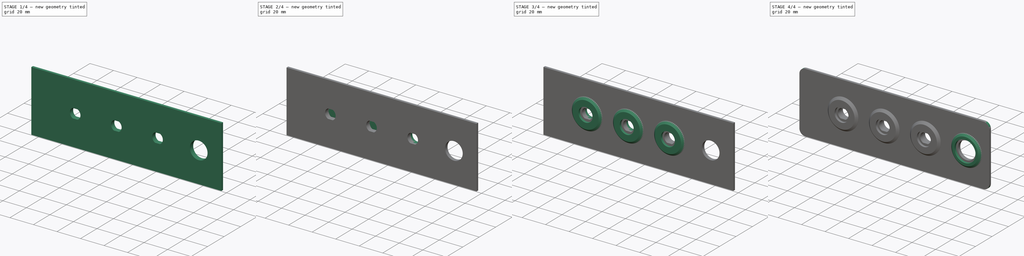
[diagram: build sequence overview — one tinted view per stage of 4, left to right]
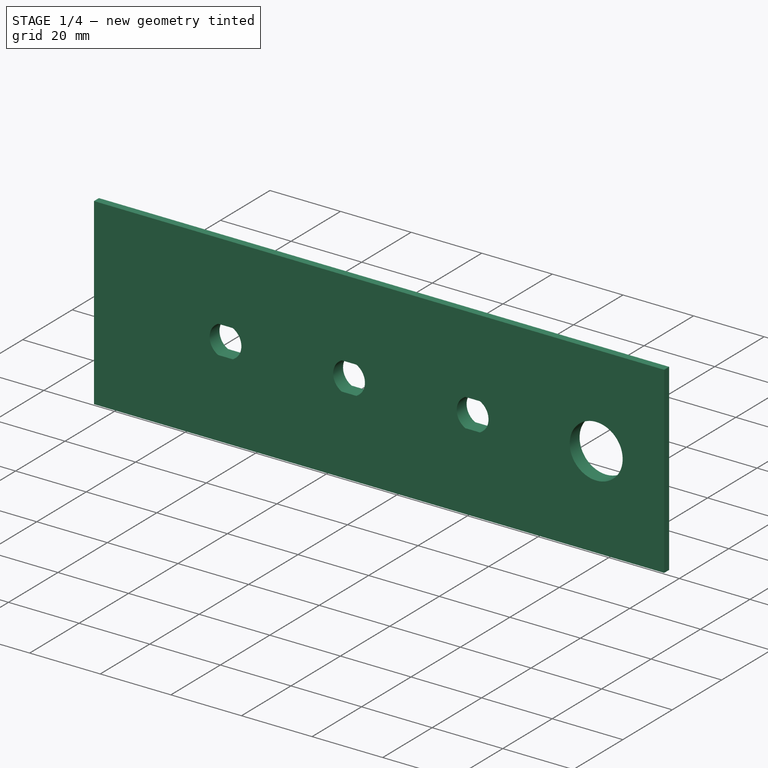
[diagram: stage 1 of 4 — iso view after this stage's code; geometry added in this stage tinted green]
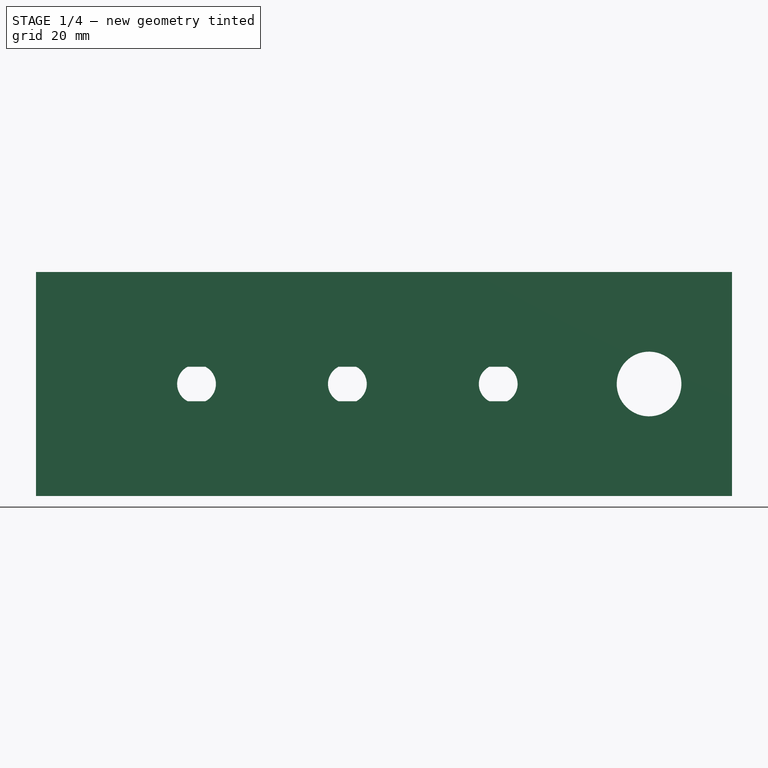
[diagram: stage 1 of 4 — front view after this stage's code; geometry added in this stage tinted green]
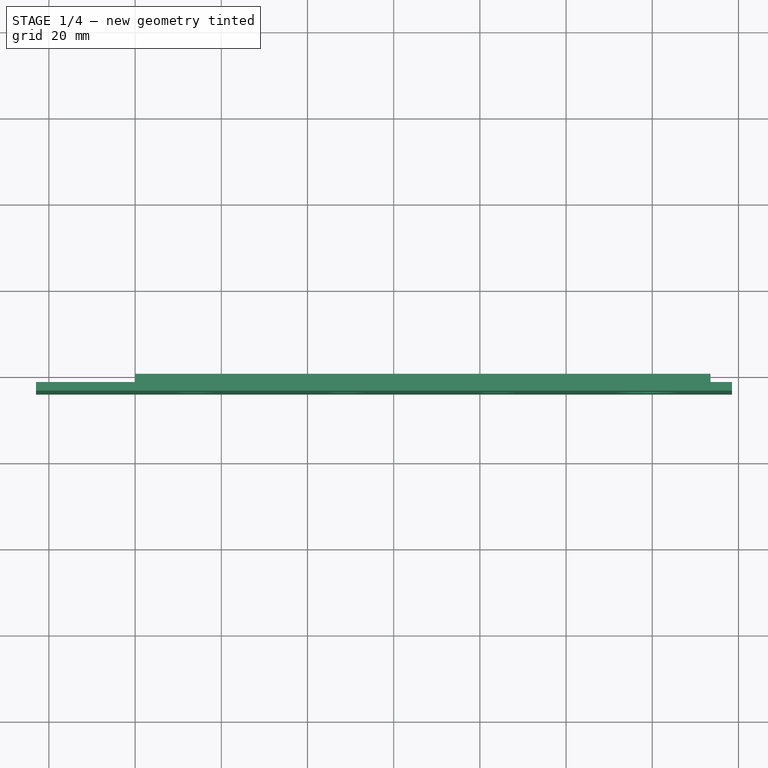
[diagram: stage 1 of 4 — top view after this stage's code; geometry added in this stage tinted green]
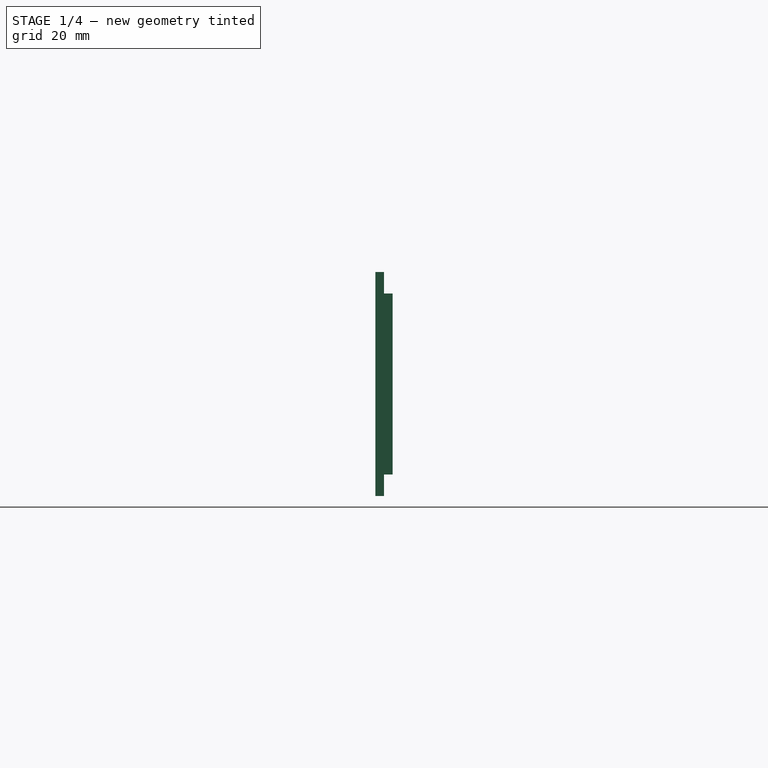
[diagram: stage 1 of 4 — right view after this stage's code; geometry added in this stage tinted green]
FCSTD DOCUMENT  (FreeCAD 0.17R13519 (Git))
Label: panel
License: All rights reserved
LicenseURL: http://en.wikipedia.org/wiki/All_rights_reserved
objects: Sketcher::SketchObject×8, PartDesign::Pad×5, PartDesign::Pocket×3, PartDesign::LinearPattern×2, PartDesign::Chamfer×2, PartDesign::Fillet×1, PartDesign::Body×1
note: 30 computed .brp shape members not serialized (recipe doc carries the construction recipe); baked Part::Feature solids carry a one-line shape summary decoded from their .brp

FEATURE [Sketcher::SketchObject] Sketch
  MapMode = 5
  Placement = pos=(0,0,0) rot=(1,0,0;1.5708rad)
  Support = -> [XZ_Plane]
  sketch-geometry (4):
    g0: LineSegment StartX=0 StartY=0 StartZ=0 EndX=133.5 EndY=0 EndZ=0
    g1: LineSegment StartX=133.5 StartY=0 StartZ=0 EndX=133.5 EndY=42 EndZ=0
    g2: LineSegment StartX=133.5 StartY=42 StartZ=0 EndX=0 EndY=42 EndZ=0
    g3: LineSegment StartX=0 StartY=42 StartZ=0 EndX=0 EndY=0 EndZ=0
  constraints (11):
    c: Coincident(g0,g1)
    c: Coincident(g1,g2)
    c: Coincident(g2,g3)
    c: Coincident(g3,g0)
    c: Horizontal(g0)
    c: Horizontal(g2)
    c: Vertical(g1)
    c: Vertical(g3)
    c: DistanceX(g0,g0) = 133.5
    c: DistanceY(g3,g3) = 42
    c: Coincident(g0,g-1)
FEATURE [PartDesign::Pad] Pad
  Length = 2
  Length2 = 100
  Placement = pos=(0,0,0) rot=(1,0,0;1.5708rad)
  Profile = -> Sketch
  Type = 0
FEATURE [Sketcher::SketchObject] Sketch001
  ExternalGeometry = -> [Pad]
  MapMode = 5
  Placement = pos=(0,-2,0) rot=(1,0,0;1.5708rad)
  Support = -> [Pad]
  sketch-geometry (4):
    g0: LineSegment StartX=138.5 StartY=-5 StartZ=0 EndX=-23 EndY=-5 EndZ=0
    g1: LineSegment StartX=-23 StartY=-5 StartZ=0 EndX=-23 EndY=47 EndZ=0
    g2: LineSegment StartX=-23 StartY=47 StartZ=0 EndX=138.5 EndY=47 EndZ=0
    g3: LineSegment StartX=138.5 StartY=47 StartZ=0 EndX=138.5 EndY=-5 EndZ=0
  constraints (12):
    c: Coincident(g0,g1)
    c: Coincident(g1,g2)
    c: Coincident(g2,g3)
    c: Coincident(g3,g0)
    c: Horizontal(g0)
    c: Horizontal(g2)
    c: Vertical(g1)
    c: Vertical(g3)
    c: DistanceX(g-4,g0) = 5
    c: DistanceY(g0,g-4) = 5
    c: DistanceY(g-3,g2) = 5
    c: DistanceX(g0,g-1) = 23
FEATURE [PartDesign::Pad] Pad001
  BaseFeature = -> Pad
  Length = 2
  Length2 = 100
  Placement = pos=(0,0,0) rot=(1,0,0;1.5708rad)
  Profile = -> Sketch001
  Type = 0
FEATURE [Sketcher::SketchObject] Sketch002
  ExternalGeometry = -> [Pad001]
  MapMode = 5
  Placement = pos=(0,-4,0) rot=(1,0,0;1.5708rad)
  Support = -> [Pad001]
  sketch-geometry (22):
    g0: Circle [constr] CenterX=119.25 CenterY=21 CenterZ=0 NormalX=0 NormalY=0 NormalZ=1 AngleXU=0 Radius=10
    g1: Circle [constr] CenterX=84.25 CenterY=21 CenterZ=0 NormalX=0 NormalY=0 NormalZ=1 AngleXU=0 Radius=10
    g2: Circle [constr] CenterX=14.25 CenterY=21 CenterZ=0 NormalX=0 NormalY=0 NormalZ=1 AngleXU=0 Radius=10
    g3: Circle [constr] CenterX=49.25 CenterY=21 CenterZ=0 NormalX=0 NormalY=0 NormalZ=1 AngleXU=0 Radius=10
    g4: LineSegment [constr] StartX=0 StartY=21 StartZ=0 EndX=14.25 EndY=21 EndZ=0
    g5: LineSegment [constr] StartX=14.25 StartY=21 StartZ=0 EndX=49.25 EndY=21 EndZ=0
    g6: LineSegment [constr] StartX=49.25 StartY=21 StartZ=0 EndX=84.25 EndY=21 EndZ=0
    g7: LineSegment [constr] StartX=84.25 StartY=21 StartZ=0 EndX=119.25 EndY=21 EndZ=0
    g8: LineSegment [constr] StartX=119.25 StartY=21 StartZ=0 EndX=133.5 EndY=21 EndZ=0
    g9: ArcOfCircle CenterX=14.25 CenterY=21 CenterZ=0 NormalX=0 NormalY=0 NormalZ=1 AngleXU=0 Radius=4.5 StartAngle=2.04668 EndAngle=4.23651
    g10: ArcOfCircle CenterX=49.25 CenterY=21 CenterZ=0 NormalX=0 NormalY=0 NormalZ=1 AngleXU=0 Radius=4.5 StartAngle=2.04668 EndAngle=4.23651
    g11: LineSegment StartX=12.1884 StartY=25 StartZ=0 EndX=16.3116 EndY=25 EndZ=0
    g12: LineSegment StartX=12.1884 StartY=17 StartZ=0 EndX=16.3116 EndY=17 EndZ=0
    g13: ArcOfCircle CenterX=14.25 CenterY=21 CenterZ=0 NormalX=0 NormalY=0 NormalZ=1 AngleXU=0 Radius=4.5 StartAngle=5.18827 EndAngle=7.3781
    g14: LineSegment StartX=51.3116 StartY=25 StartZ=0 EndX=47.1884 EndY=25 EndZ=0
    g15: LineSegment StartX=47.1884 StartY=17 StartZ=0 EndX=51.3116 EndY=17 EndZ=0
    g16: ArcOfCircle CenterX=49.25 CenterY=21 CenterZ=0 NormalX=0 NormalY=0 NormalZ=1 AngleXU=0 Radius=4.5 StartAngle=5.18827 EndAngle=7.3781
    g17: LineSegment StartX=82.1884 StartY=17 StartZ=0 EndX=86.3116 EndY=17 EndZ=0
    g18: ArcOfCircle CenterX=84.25 CenterY=21 CenterZ=0 NormalX=0 NormalY=0 NormalZ=1 AngleXU=0 Radius=4.5 StartAngle=2.04668 EndAngle=4.23651
    g19: LineSegment StartX=86.3116 StartY=25 StartZ=0 EndX=82.1884 EndY=25 EndZ=0
    g20: ArcOfCircle CenterX=84.25 CenterY=21 CenterZ=0 NormalX=0 NormalY=0 NormalZ=1 AngleXU=0 Radius=4.5 StartAngle=5.18827 EndAngle=7.3781
    g21: Circle CenterX=119.25 CenterY=21 CenterZ=0 NormalX=0 NormalY=0 NormalZ=1 AngleXU=0 Radius=7.5
  constraints (61):
    c: Equal(g2,g1)
    c: Equal(g1,g0)
    c: Horizontal(g4)
    c: Coincident(g4,g5)
    c: Horizontal(g5)
    c: Coincident(g5,g6)
    c: Horizontal(g6)
    c: Coincident(g6,g7)
    c: Coincident(g7,g8)
    c: Horizontal(g8)
    c: Horizontal(g7)
    c: Equal(g7,g6)
    c: Equal(g6,g5)
    c: Equal(g8,g4)
    c: PointOnObject(g4,g-4)
    c: Symmetric(g-3,g-3,g8)
    c: Coincident(g0,g7)
    c: Coincident(g1,g6)
    c: Coincident(g2,g4)
    c: Equal(g3,g0)
    c: Coincident(g5,g3)
    c: Radius(g2) = 10
    c: DistanceX(g2,g3) = 35
    c: Coincident(g9,g2)
    c: Horizontal(g11)
    c: Horizontal(g12)
    c: Coincident(g9,g11)
    c: Coincident(g13,g11)
    c: Equal(g9,g13)
    c: Coincident(g9,g12)
    c: Coincident(g13,g12)
    c: Coincident(g9,g13)
    c: Equal(g12,g11)
    c: DistanceY(g9,g9) = 8
    c: Radius(g9) = 4.5
    c: Horizontal(g15)
    c: Horizontal(g14)
    c: Equal(g15,g14)
    c: Coincident(g3,g10)
    c: Coincident(g10,g14)
    c: Coincident(g16,g14)
    c: Equal(g10,g16)
    c: Coincident(g10,g15)
    c: Coincident(g16,g15)
    c: Coincident(g10,g16)
    c: Equal(g15,g12)
    c: Equal(g10,g13)
    c: Horizontal(g17)
    c: Horizontal(g19)
    c: Equal(g17,g19)
    c: Coincident(g18,g19)
    c: Coincident(g20,g19)
    c: Equal(g18,g20)
    c: Coincident(g18,g17)
    c: Coincident(g20,g17)
    c: Coincident(g18,g20)
    c: Coincident(g18,g1)
    c: Equal(g17,g15)
    c: Equal(g16,g20)
    c: Coincident(g21,g0)
    c: Radius(g21) = 7.5
FEATURE [PartDesign::Pocket] Pocket
  BaseFeature = -> Pad001
  Length = 5
  Length2 = 100
  Placement = pos=(0,0,0) rot=(1,0,0;1.5708rad)
  Profile = -> Sketch002
  Type = 1
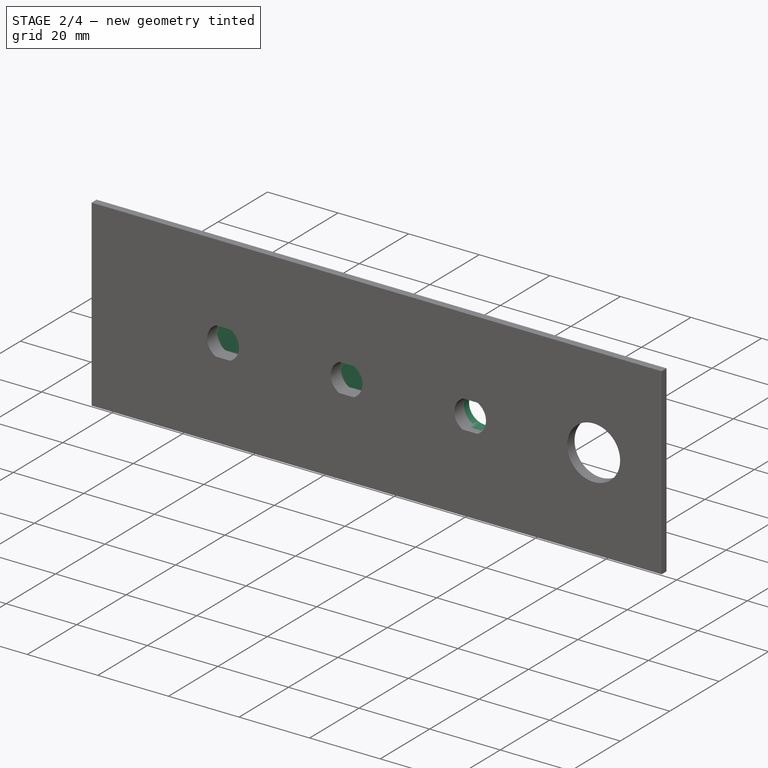
[diagram: stage 2 of 4 — iso view after this stage's code; geometry added in this stage tinted green]
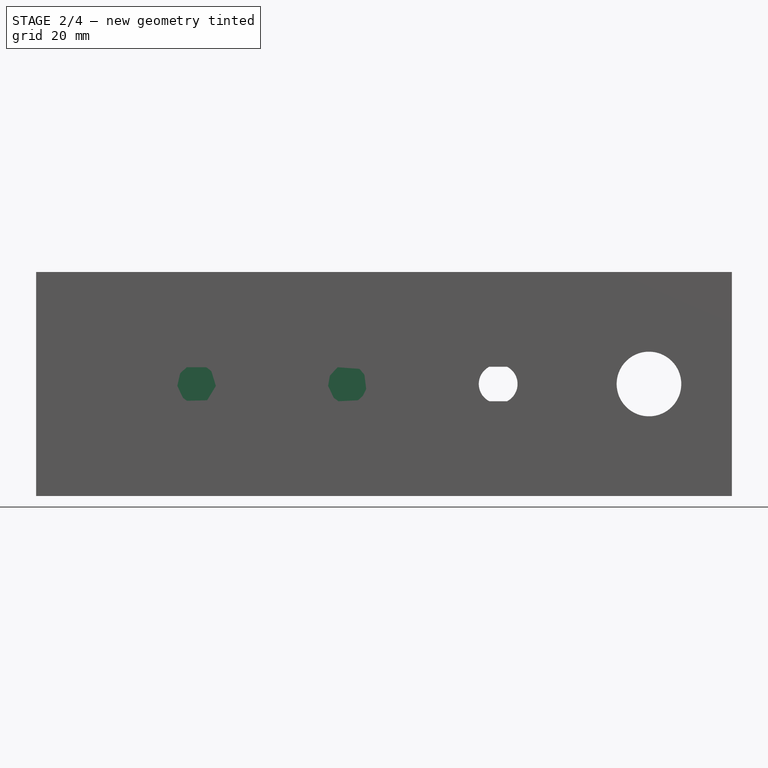
[diagram: stage 2 of 4 — front view after this stage's code; geometry added in this stage tinted green]
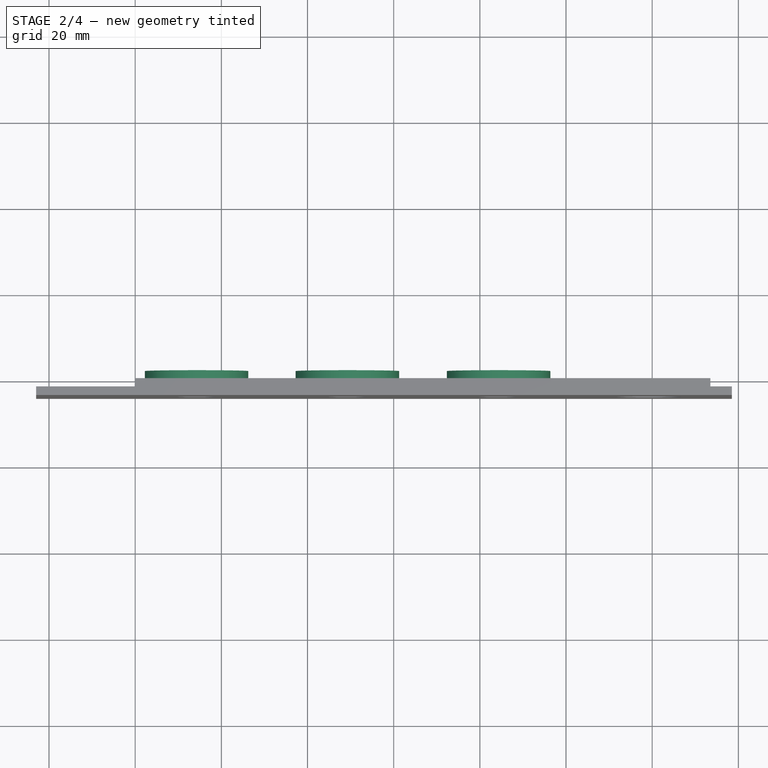
[diagram: stage 2 of 4 — top view after this stage's code; geometry added in this stage tinted green]
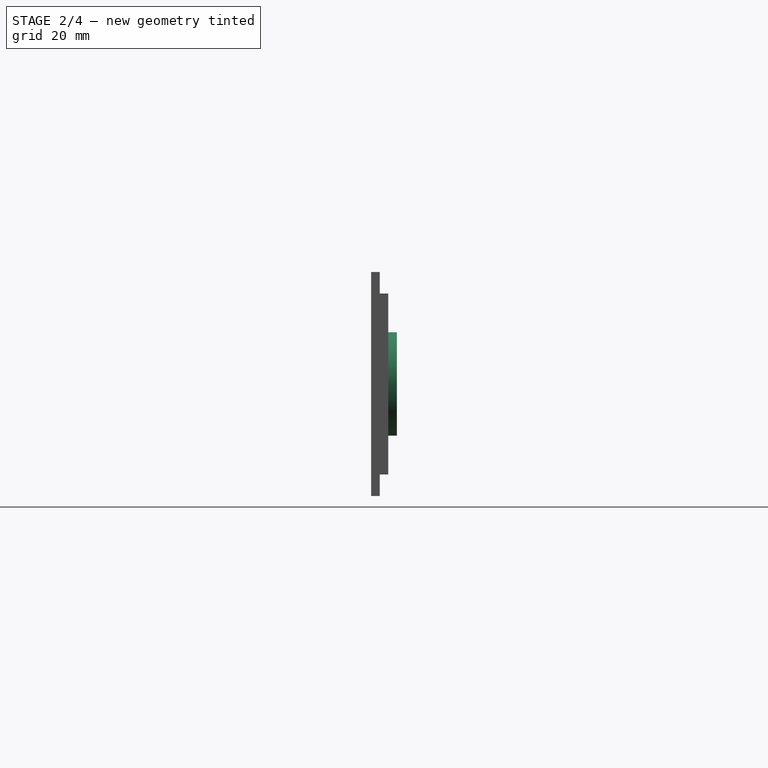
[diagram: stage 2 of 4 — right view after this stage's code; geometry added in this stage tinted green]
FEATURE [Sketcher::SketchObject] Sketch003
  ExternalGeometry = -> [Pocket]
  MapMode = 5
  Placement = pos=(0,0,0) rot=(-1,0,0;1.5708rad)
  Support = -> [Pocket]
  sketch-geometry (1):
    g0: Circle CenterX=119.25 CenterY=-21 CenterZ=0 NormalX=0 NormalY=0 NormalZ=1 AngleXU=0 Radius=12
  constraints (2):
    c: Coincident(g0,g-3)
    c: Radius(g0) = 12
FEATURE [PartDesign::Pocket] Pocket001
  BaseFeature = -> Pocket
  Length = 1
  Length2 = 100
  Placement = pos=(0,0,0) rot=(1,0,0;1.5708rad)
  Profile = -> Sketch003
  Type = 0
FEATURE [Sketcher::SketchObject] Sketch004
  ExternalGeometry = -> [Pocket001]
  MapMode = 5
  Placement = pos=(0,0,0) rot=(-1,0,0;1.5708rad)
  Support = -> [Pocket001]
  sketch-geometry (3):
    g0: Circle CenterX=84.3556 CenterY=-21.0023 CenterZ=0 NormalX=0 NormalY=0 NormalZ=1 AngleXU=0 Radius=12
    g1: Circle CenterX=49.25 CenterY=-21 CenterZ=0 NormalX=0 NormalY=0 NormalZ=1 AngleXU=0 Radius=12
    g2: Circle CenterX=14.25 CenterY=-21 CenterZ=0 NormalX=0 NormalY=0 NormalZ=1 AngleXU=0 Radius=12
  constraints (4):
    c: Coincident(g1,g-4)
    c: Equal(g2,g1)
    c: Equal(g1,g0)
    c: Radius(g2) = 12
FEATURE [PartDesign::Pad] Pad002
  BaseFeature = -> Pocket001
  Length = 2
  Length2 = 100
  Placement = pos=(0,0,0) rot=(1,0,0;1.5708rad)
  Profile = -> Sketch004
  Type = 0
FEATURE [Sketcher::SketchObject] Sketch005
  ExternalGeometry = -> [Pad002]
  MapMode = 5
  Placement = pos=(0,2,0) rot=(-1,0,0;1.5708rad)
  Support = -> [Pad002]
  sketch-geometry (3):
    g0: Circle CenterX=14.25 CenterY=-21 CenterZ=0 NormalX=0 NormalY=0 NormalZ=1 AngleXU=0 Radius=4.5
    g1: Circle CenterX=49.25 CenterY=-21 CenterZ=0 NormalX=0 NormalY=0 NormalZ=1 AngleXU=0 Radius=4.5
    g2: Circle CenterX=84.25 CenterY=-21 CenterZ=0 NormalX=0 NormalY=0 NormalZ=1 AngleXU=0 Radius=4.5
  constraints (6):
    c: Coincident(g0,g-3)
    c: Equal(g0,g-3)
    c: Coincident(g2,g-5)
    c: Coincident(g1,g-4)
    c: Equal(g2,g1)
    c: Equal(g1,g0)
FEATURE [PartDesign::Pocket] Pocket002
  BaseFeature = -> Pad002
  Length = 0
  Length2 = 100
  Placement = pos=(0,0,0) rot=(1,0,0;1.5708rad)
  Profile = -> Sketch005
  Type = 3
  UpToFace = -> Pad002 [Face4]
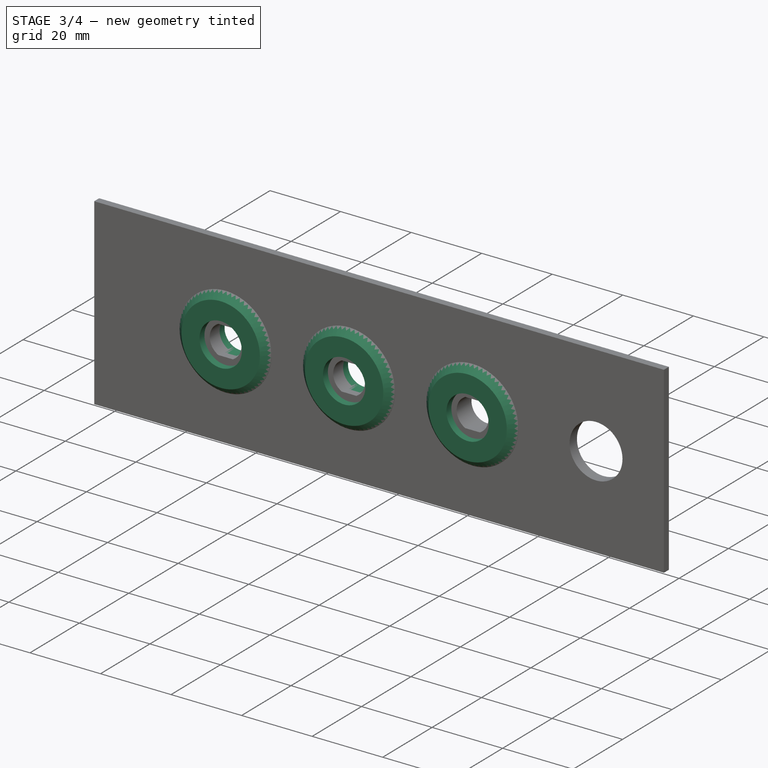
[diagram: stage 3 of 4 — iso view after this stage's code; geometry added in this stage tinted green]
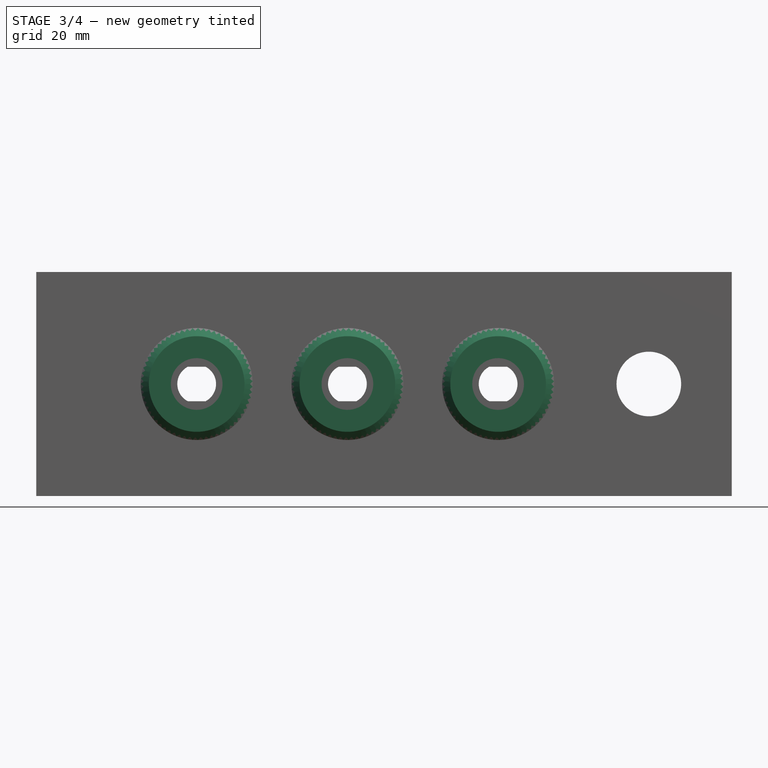
[diagram: stage 3 of 4 — front view after this stage's code; geometry added in this stage tinted green]
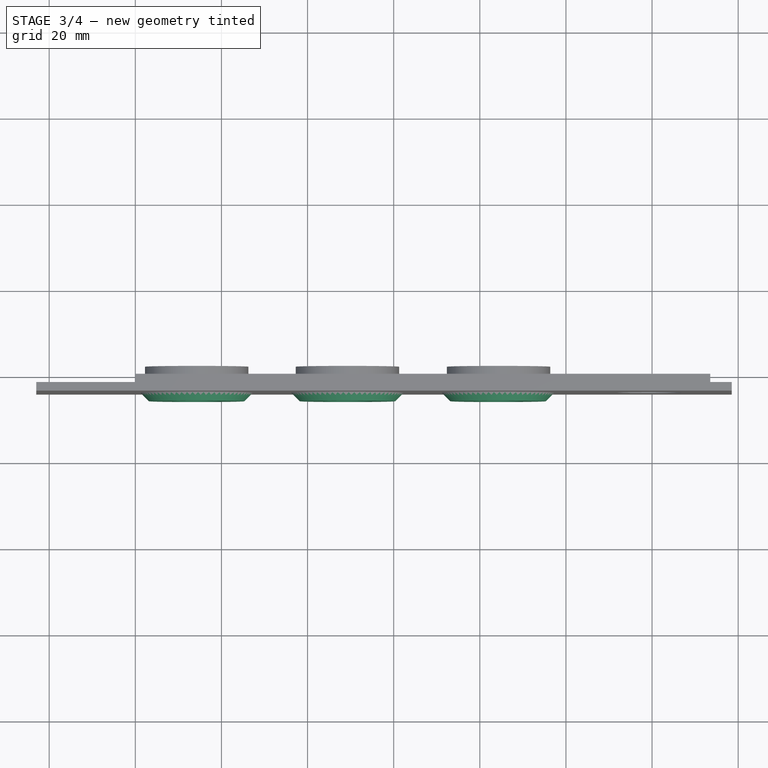
[diagram: stage 3 of 4 — top view after this stage's code; geometry added in this stage tinted green]
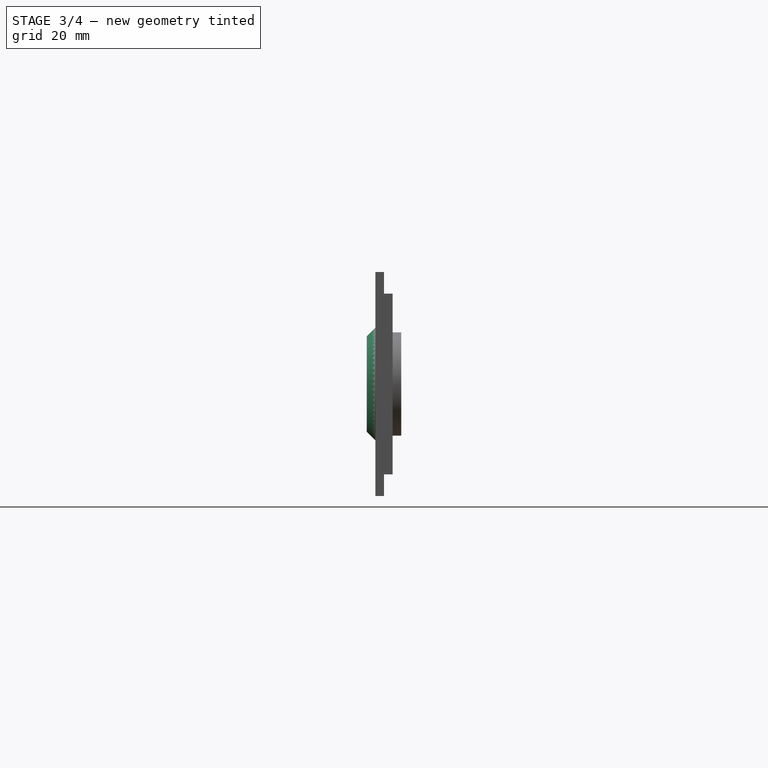
[diagram: stage 3 of 4 — right view after this stage's code; geometry added in this stage tinted green]
FEATURE [PartDesign::LinearPattern] LinearPattern
  BaseFeature = -> Pocket002
  Direction = -> X_Axis
  Length = 70
  Occurrences = 3
  Originals = -> [Pocket002]
  Placement = pos=(0,0,0) rot=(1,0,0;1.5708rad)
  Reversed = true
FEATURE [Sketcher::SketchObject] Sketch006
  ExternalGeometry = -> [LinearPattern]
  MapMode = 5
  Placement = pos=(0,-4,0) rot=(1,0,0;1.5708rad)
  Support = -> [LinearPattern]
  sketch-geometry (2):
    g0: Circle CenterX=84.25 CenterY=21 CenterZ=0 NormalX=0 NormalY=0 NormalZ=1 AngleXU=0 Radius=13
    g1: Circle CenterX=84.25 CenterY=21 CenterZ=0 NormalX=0 NormalY=0 NormalZ=1 AngleXU=0 Radius=6
  constraints (4):
    c: Coincident(g0,g-3)
    c: Radius(g0) = 13
    c: Coincident(g1,g0)
    c: Radius(g1) = 6
FEATURE [PartDesign::Pad] Pad003
  BaseFeature = -> LinearPattern
  Length = 2
  Length2 = 100
  Placement = pos=(0,0,0) rot=(1,0,0;1.5708rad)
  Profile = -> Sketch006
  Type = 0
FEATURE [PartDesign::LinearPattern] LinearPattern001
  BaseFeature = -> Pad003
  Direction = -> Sketch006 [H_Axis]
  Length = 70
  Occurrences = 3
  Originals = -> [Pad003]
  Placement = pos=(0,0,0) rot=(1,0,0;1.5708rad)
  Reversed = true
FEATURE [PartDesign::Chamfer] Chamfer
  Base = -> LinearPattern001 [Edge79,Edge81,Edge77]
  BaseFeature = -> LinearPattern001
  Placement = pos=(0,0,0) rot=(1,0,0;1.5708rad)
  Size = 1.9
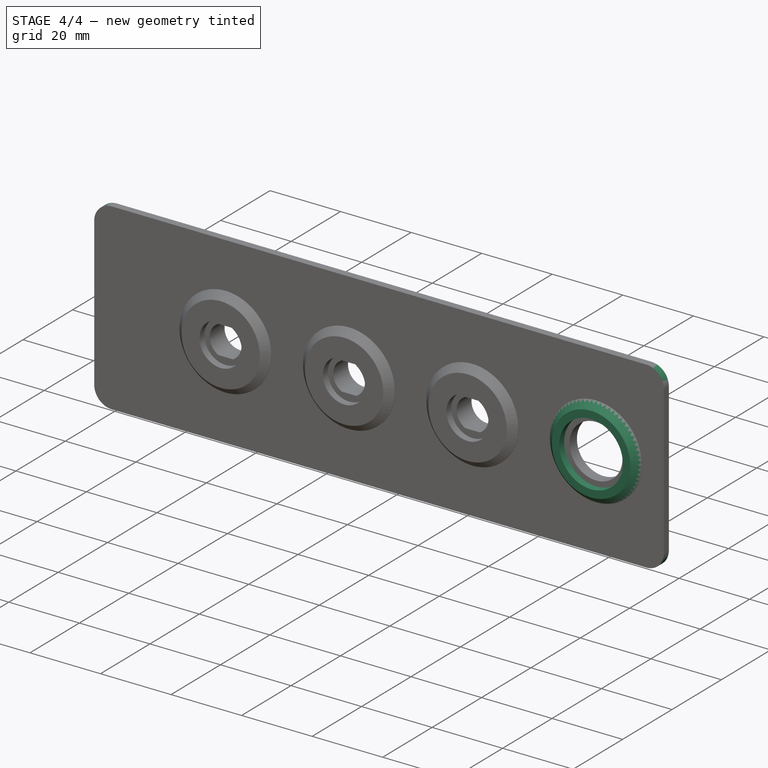
[diagram: stage 4 of 4 — iso view after this stage's code; geometry added in this stage tinted green]
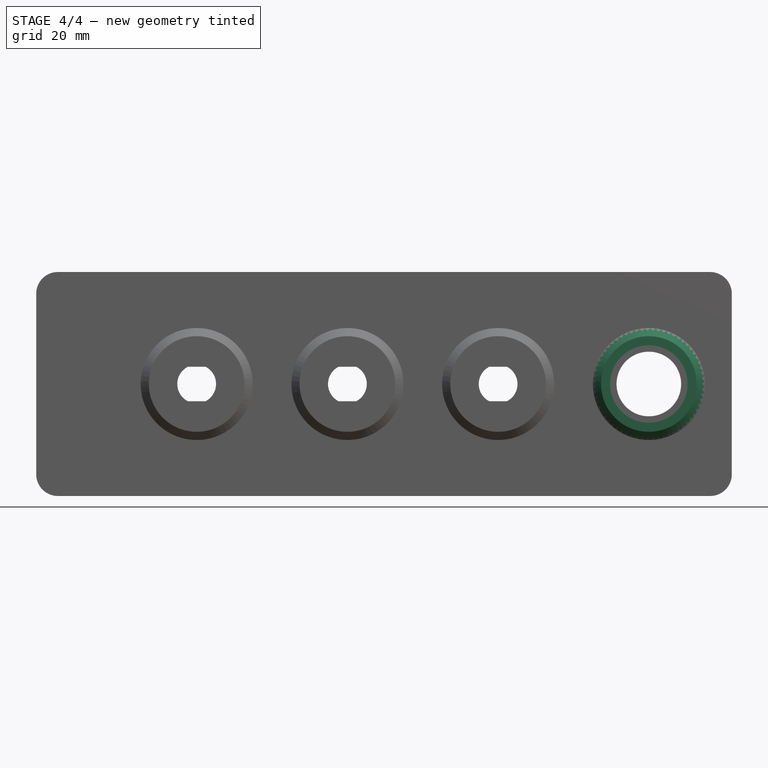
[diagram: stage 4 of 4 — front view after this stage's code; geometry added in this stage tinted green]
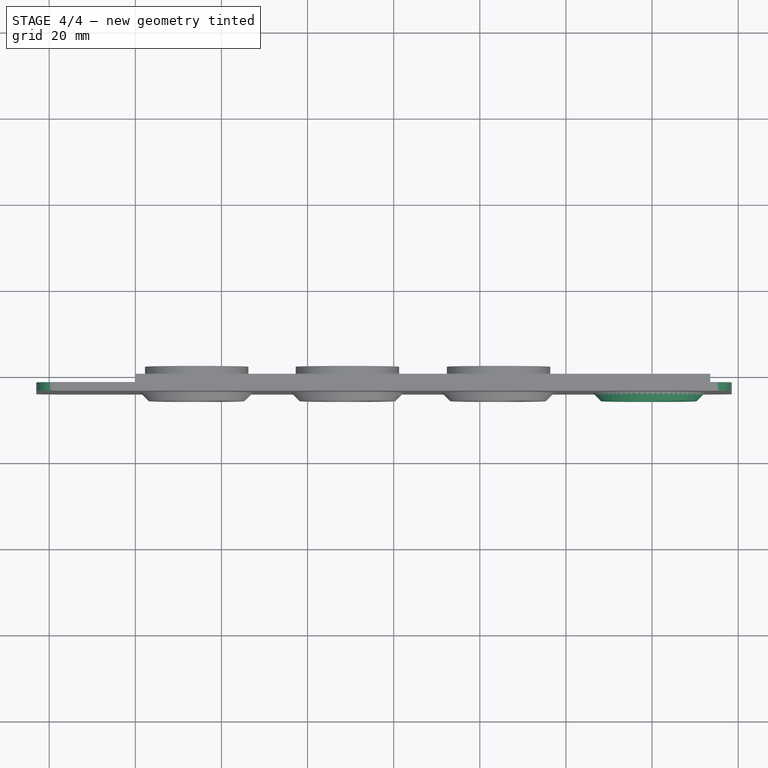
[diagram: stage 4 of 4 — top view after this stage's code; geometry added in this stage tinted green]
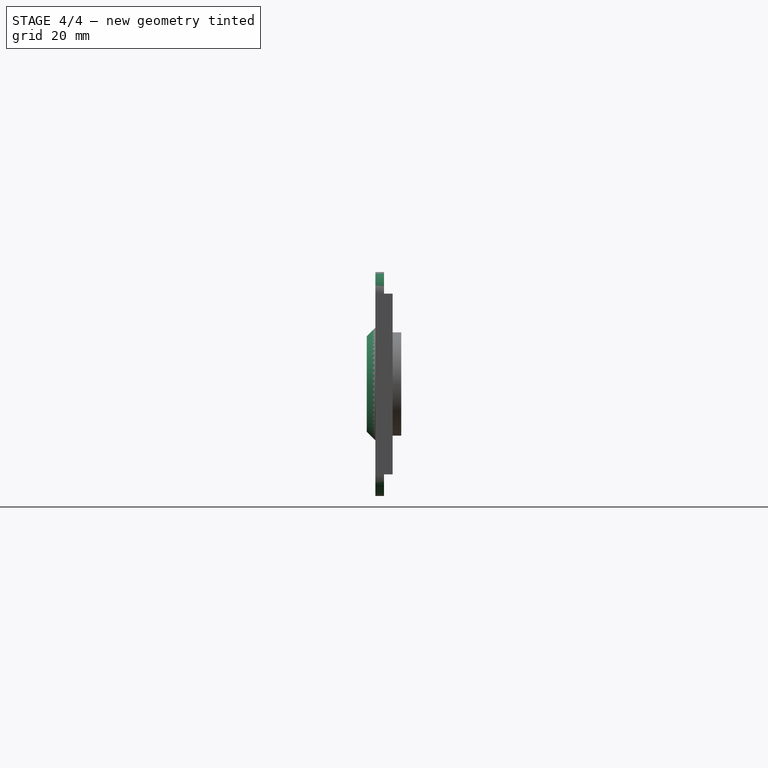
[diagram: stage 4 of 4 — right view after this stage's code; geometry added in this stage tinted green]
FEATURE [PartDesign::Fillet] Fillet
  Base = -> Chamfer [Edge15,Edge19,Edge14,Edge17]
  BaseFeature = -> Chamfer
  Placement = pos=(0,0,0) rot=(1,0,0;1.5708rad)
  Radius = 5
FEATURE [Sketcher::SketchObject] Sketch007
  ExternalGeometry = -> [Fillet]
  MapMode = 5
  Placement = pos=(0,-4,0) rot=(1,0,0;1.5708rad)
  Support = -> [Fillet]
  sketch-geometry (3):
    g0: Circle CenterX=119.25 CenterY=21 CenterZ=0 NormalX=0 NormalY=0 NormalZ=1 AngleXU=0 Radius=13
    g1: Circle CenterX=119.25 CenterY=21 CenterZ=0 NormalX=0 NormalY=0 NormalZ=1 AngleXU=0 Radius=9
    g2: LineSegment [constr] StartX=119.25 StartY=21 StartZ=0 EndX=84.25 EndY=21 EndZ=0
  constraints (6):
    c: Coincident(g0,g-3)
    c: Equal(g0,g-4)
    c: Coincident(g1,g0)
    c: Coincident(g2,g0)
    c: Coincident(g2,g-4)
    c: Radius(g1) = 9
FEATURE [PartDesign::Pad] Pad004
  BaseFeature = -> Fillet
  Length = 2
  Length2 = 100
  Placement = pos=(0,0,0) rot=(1,0,0;1.5708rad)
  Profile = -> Sketch007
  Type = 0
FEATURE [PartDesign::Chamfer] Chamfer001
  Base = -> Pad004 [Edge46]
  BaseFeature = -> Pad004
  Placement = pos=(0,0,0) rot=(1,0,0;1.5708rad)
  Size = 1.9
FEATURE [PartDesign::Body] Body
  Group = -> [Sketch,Pad,Sketch001,Pad001,Sketch002,Pocket,Sketch003,Pocket001,Sketch004,Pad002,Sketch005,Pocket002,LinearPattern,Sketch006,Pad003,LinearPattern001,Chamfer,Fillet,Sketch007,Pad004,Chamfer001]
  Origin = -> Origin
  Tip = -> Chamfer001
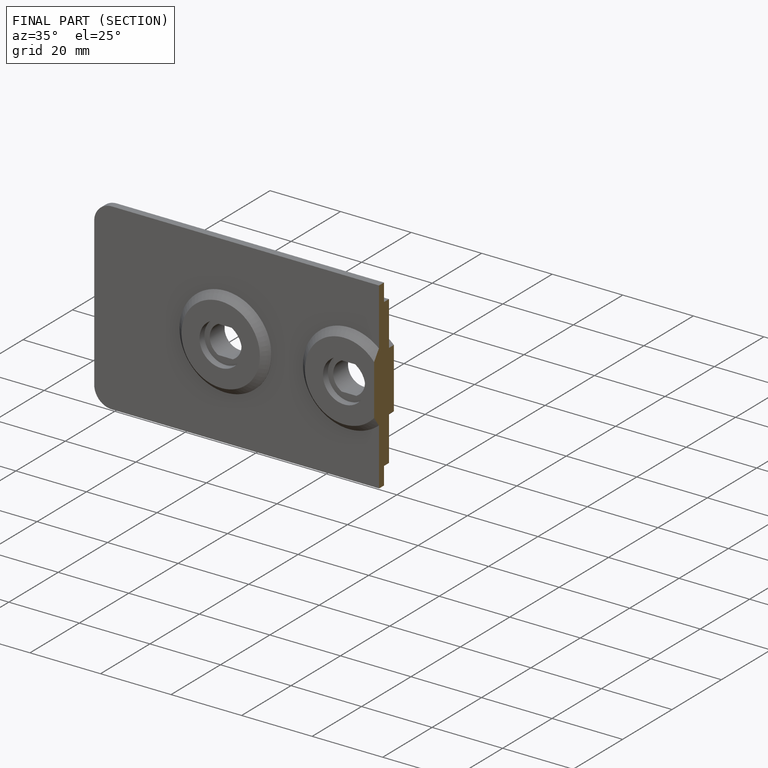
[diagram: finished part — half-section view (interior)]
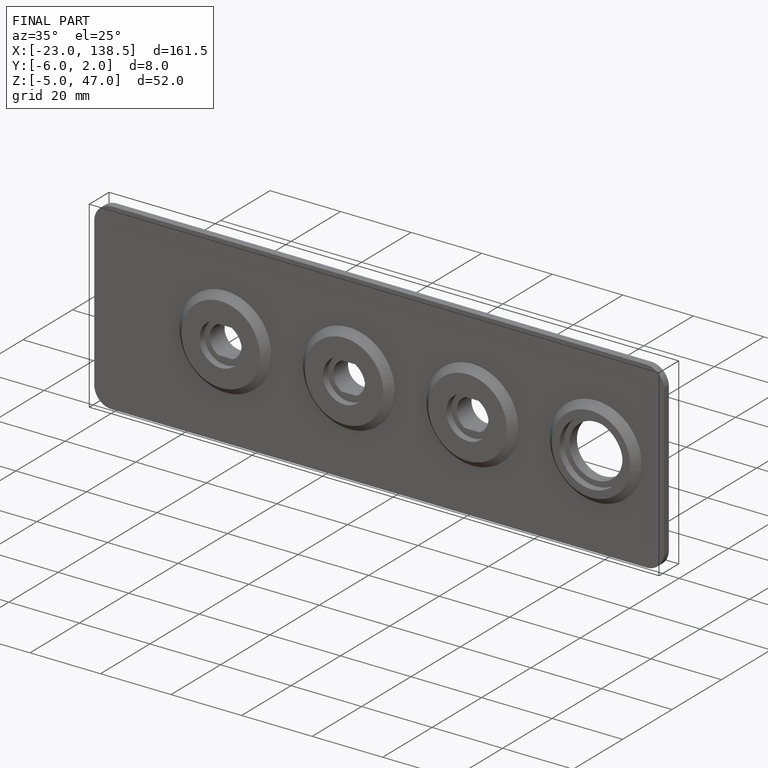
[diagram: finished part — iso view with bounding-box wireframe]
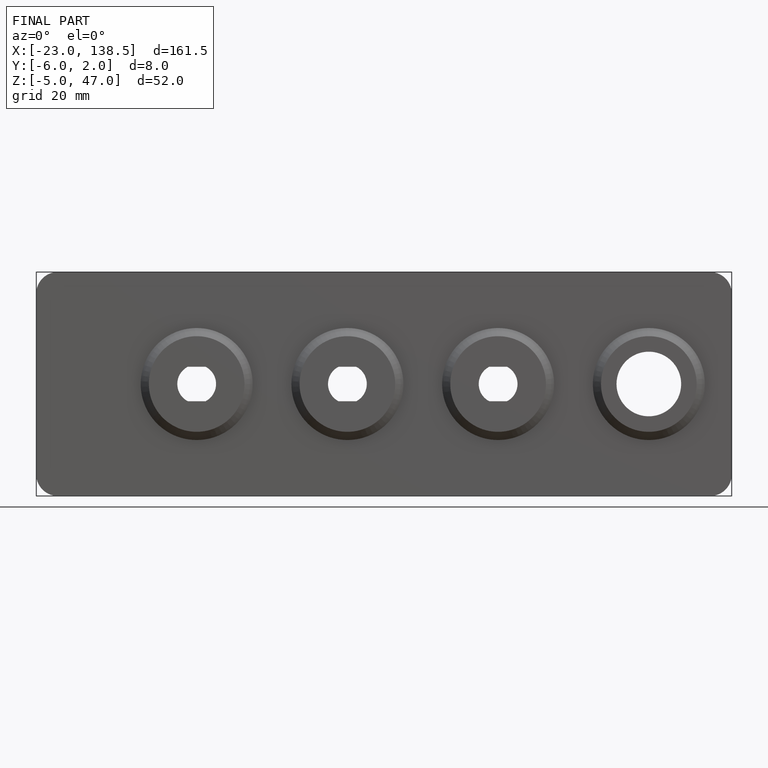
[diagram: finished part — front view with bounding-box wireframe]
